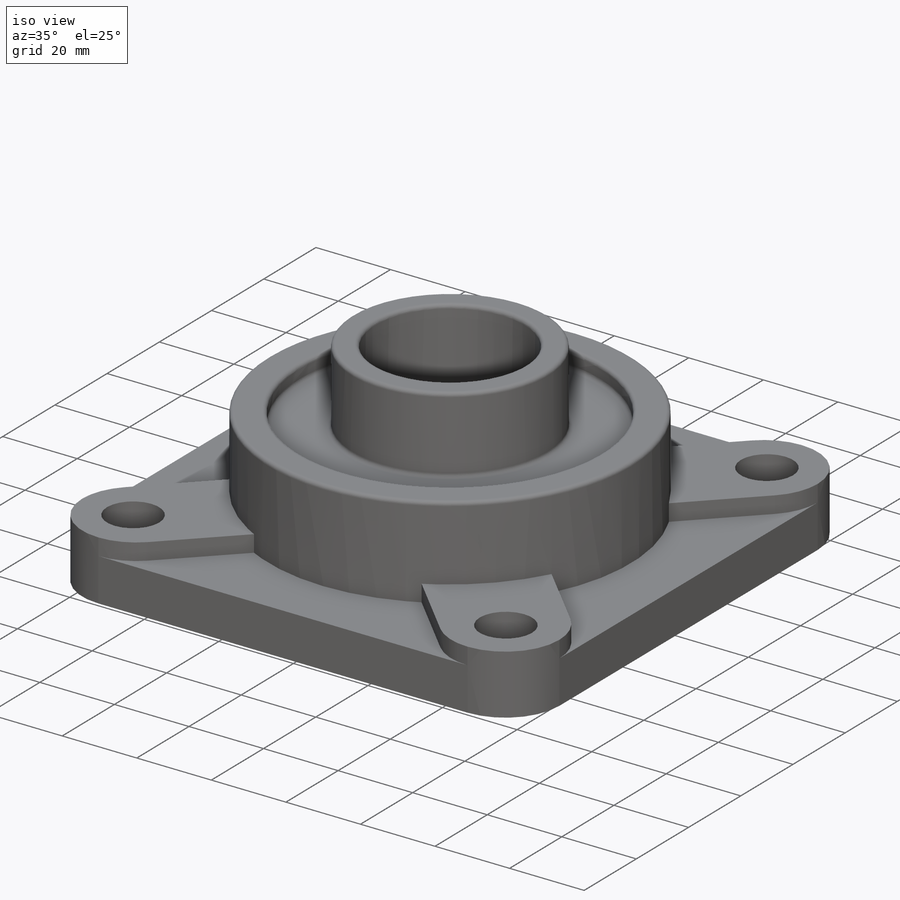
[diagram: iso view]
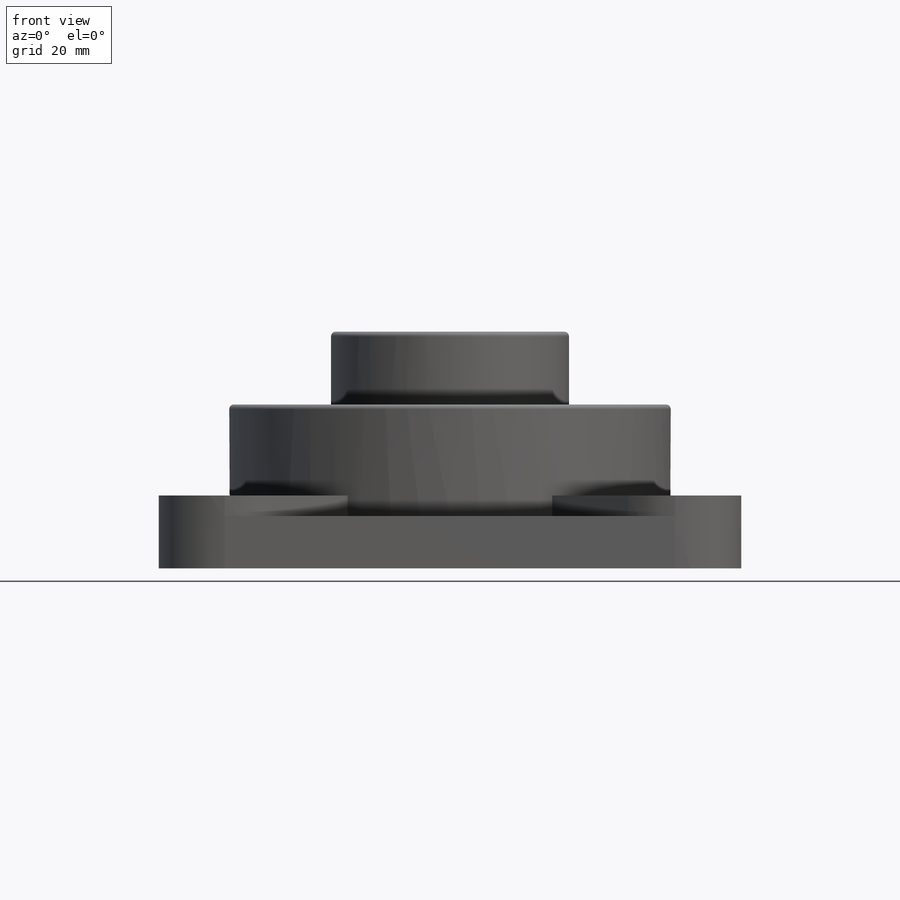
[diagram: front view]
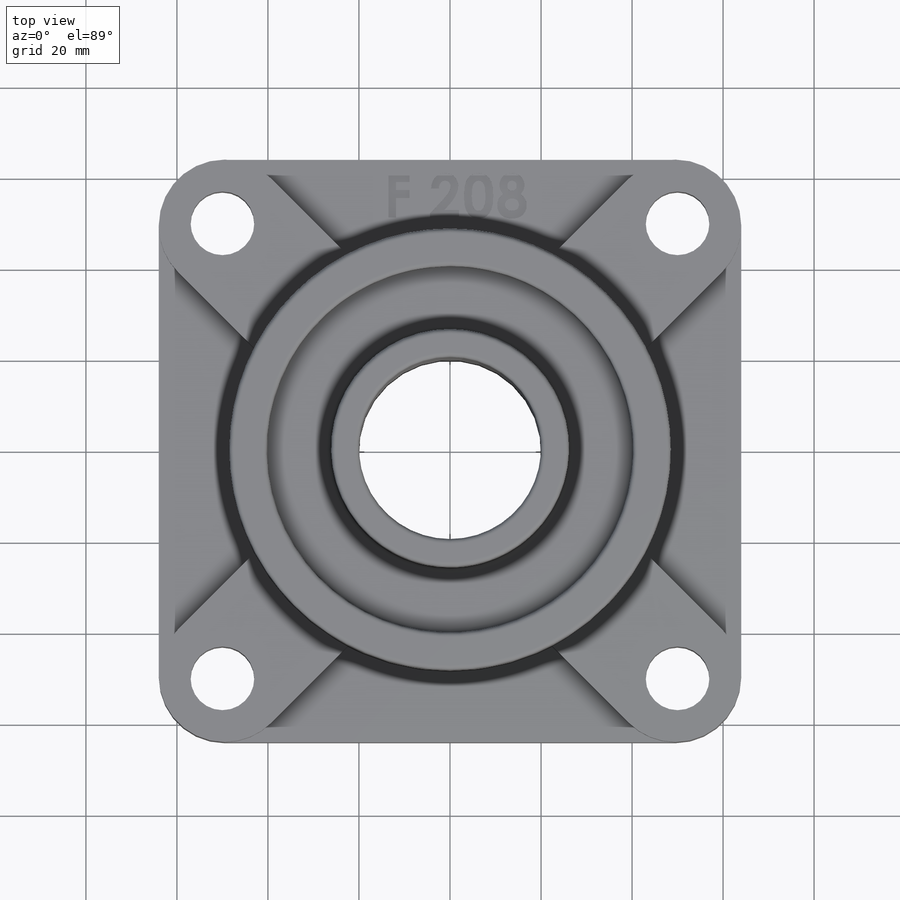
[diagram: top view]
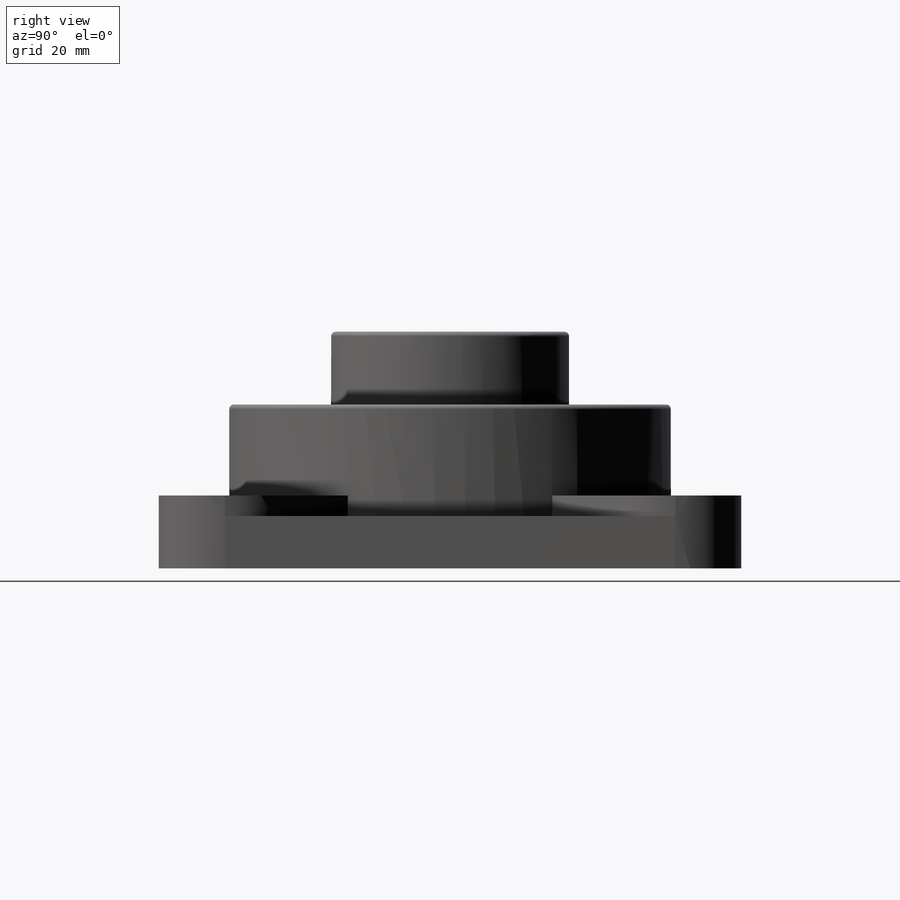
[diagram: right view]
SOLIDWORKS PART (.sldprt)
format: sldprt  version: not decoded by parser v0  size: 506,880 bytes
history: native  units: mm
features: sketch x8, extrude x4, cut_extrude x4, plane x3, fillet x3, material x1 (+10 scaffold rows collapsed)
feature tree (33):
  scaffold x10  (default folders/planes/origin — collapsed)
  material  "AISI 1020"
  plane  "Plano frontal"
  plane  "Plano superior"
  plane  "Plano direito"
  sketch  "Esboço1"  dims[D1=128.0mm D2=128.0mm]
  extrude  "Ressalto-extrusão1"  Depth=11.5mm
  sketch  "Esboço2"  dims[D1=14.5mm D2=14.5mm D3=14.5mm D4=14.5mm]
  extrude  "Ressalto-extrusão2"  Depth=4.5mm
  sketch  "Esboço3"  dims[D1=97.0mm]
  extrude  "Ressalto-extrusão3"  Depth=36mm
  sketch  "Esboço5"  dims[D1=52.3mm]
  extrude  "Ressalto-extrusão4"  Depth=52mm
  sketch  "Esboço6"  dims[D1=80.5mm D2=52.3mm]
  cut_extrude  "Corte-extrusão1"  Depth=4.5mm
  sketch  "Esboço7"  dims[D1=40.0mm]
  cut_extrude  "Corte-extrusão2"  [1 undecoded]
  sketch  "Esboço8"  dims[D2=14.0mm D1=100.0mm]
  cut_extrude  "Corte-extrusão3"  [1 undecoded]
  fillet  "Filete4"  Radius=14.5mm
  fillet  "Filete5"  Radius=1mm
  sketch  "Esboço9"
  cut_extrude  "Corte-extrusão4"  Depth=0.5mm
  fillet  "Filete6"  Radius=1mm
decode coverage: 16 of 19 modeling features carry decoded parameters
note: 2 parameter values undecoded
note: suppression state not decoded; provenance and decode notes live in map.json
